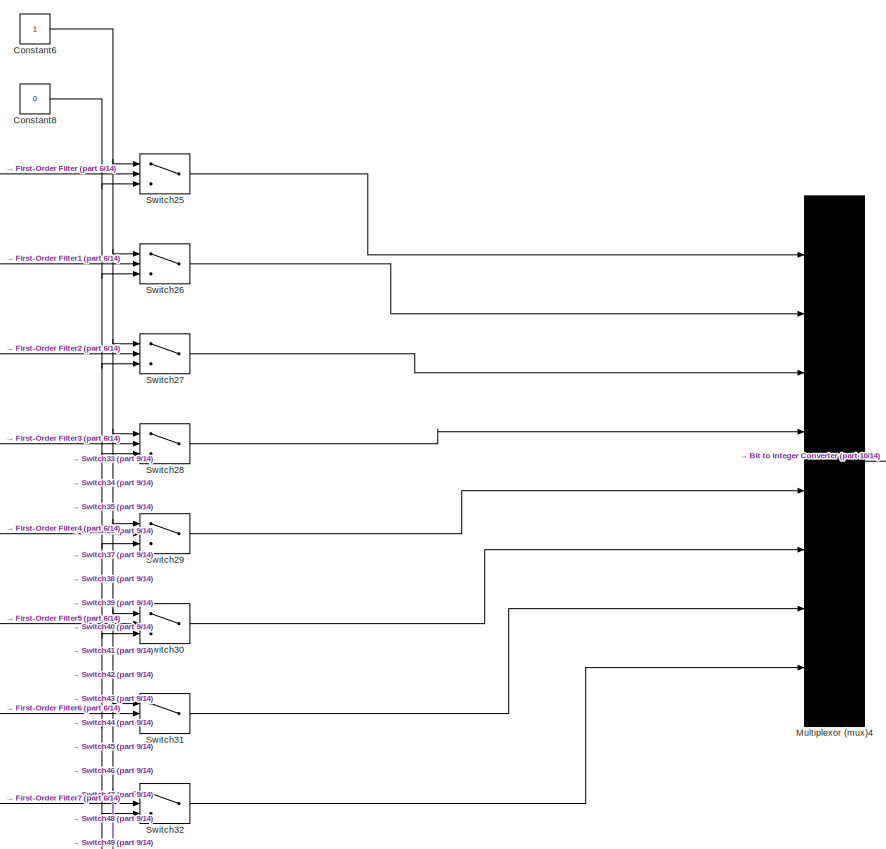
[diagram: root canvas - part 1/14, top right region]
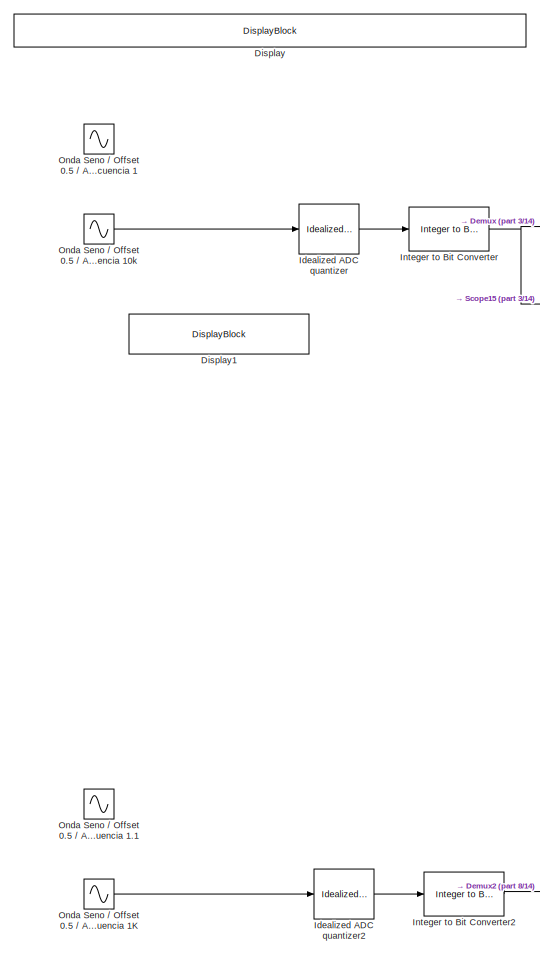
[diagram: root canvas - part 2/14, top left region]
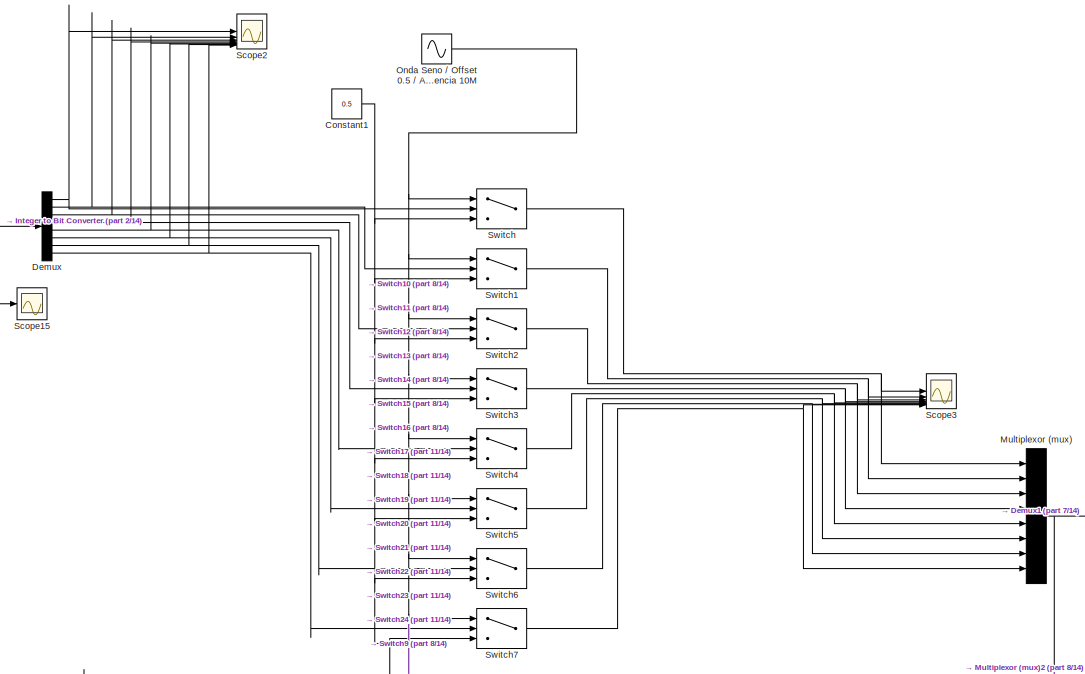
[diagram: root canvas - part 3/14, top left region]
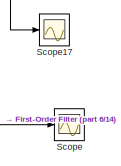
[diagram: root canvas - part 4/14, top center region]
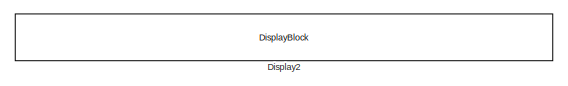
[diagram: root canvas - part 5/14, top right region]
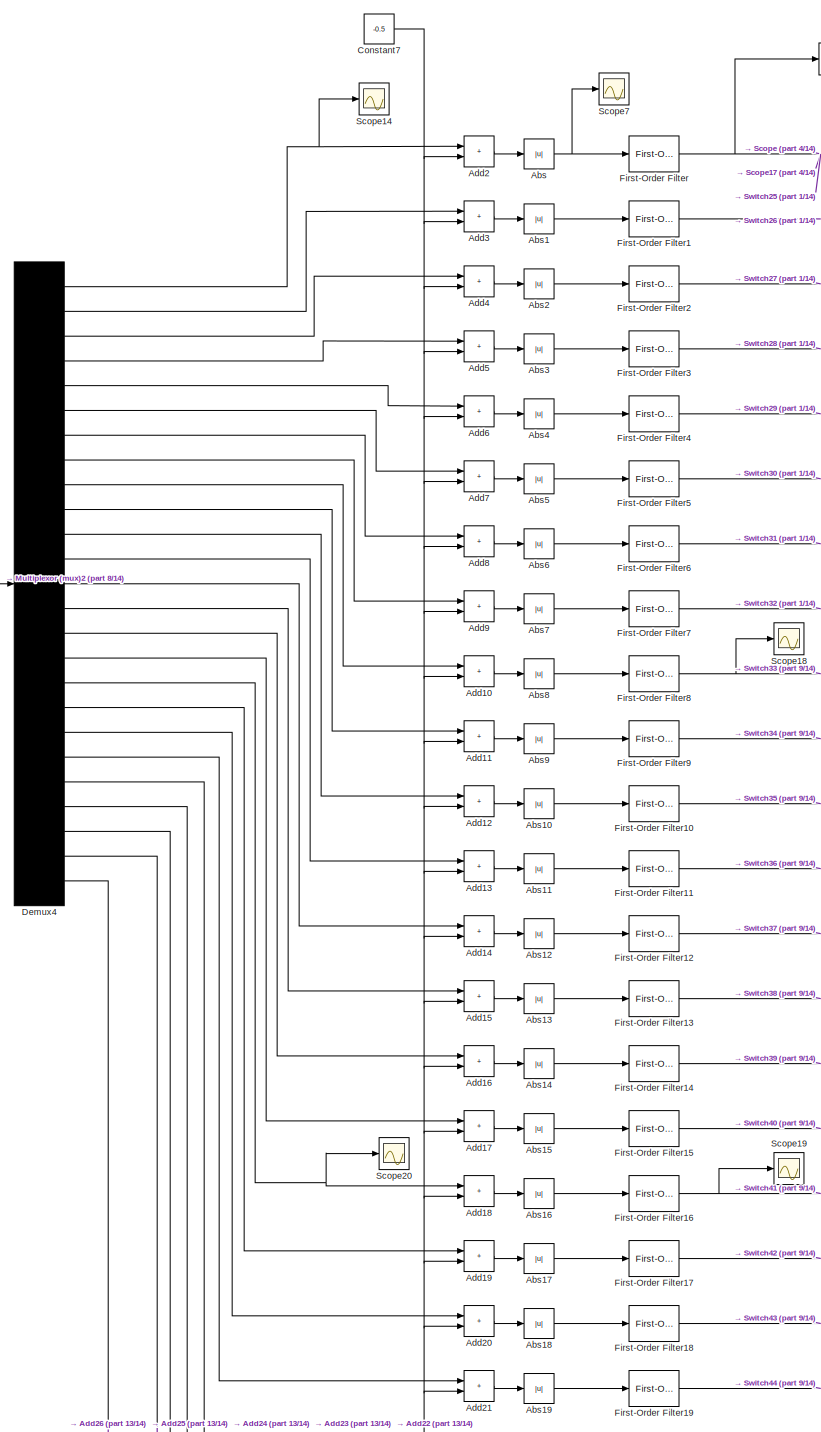
[diagram: root canvas - part 6/14, central region]
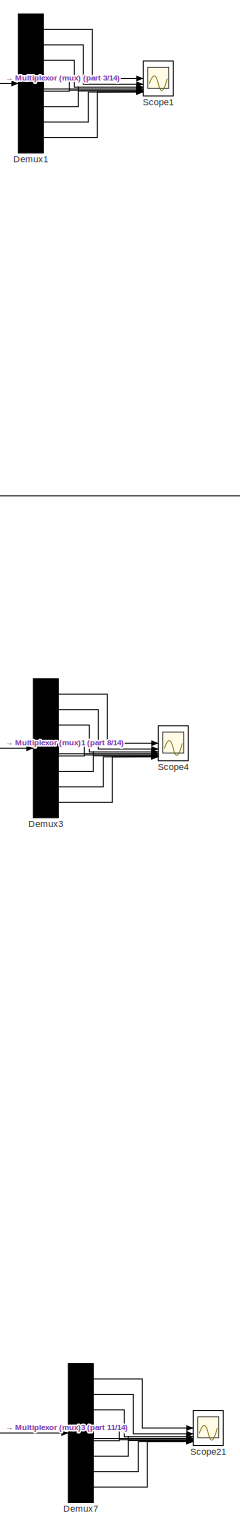
[diagram: root canvas - part 7/14, middle left region]
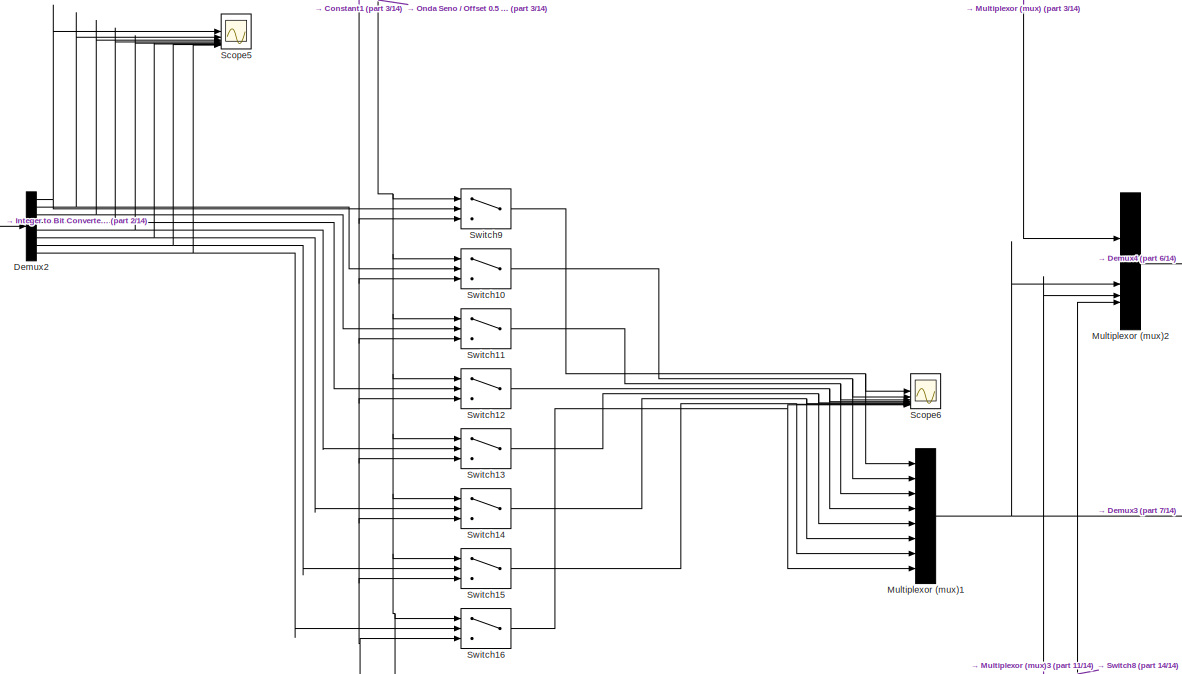
[diagram: root canvas - part 8/14, middle left region]
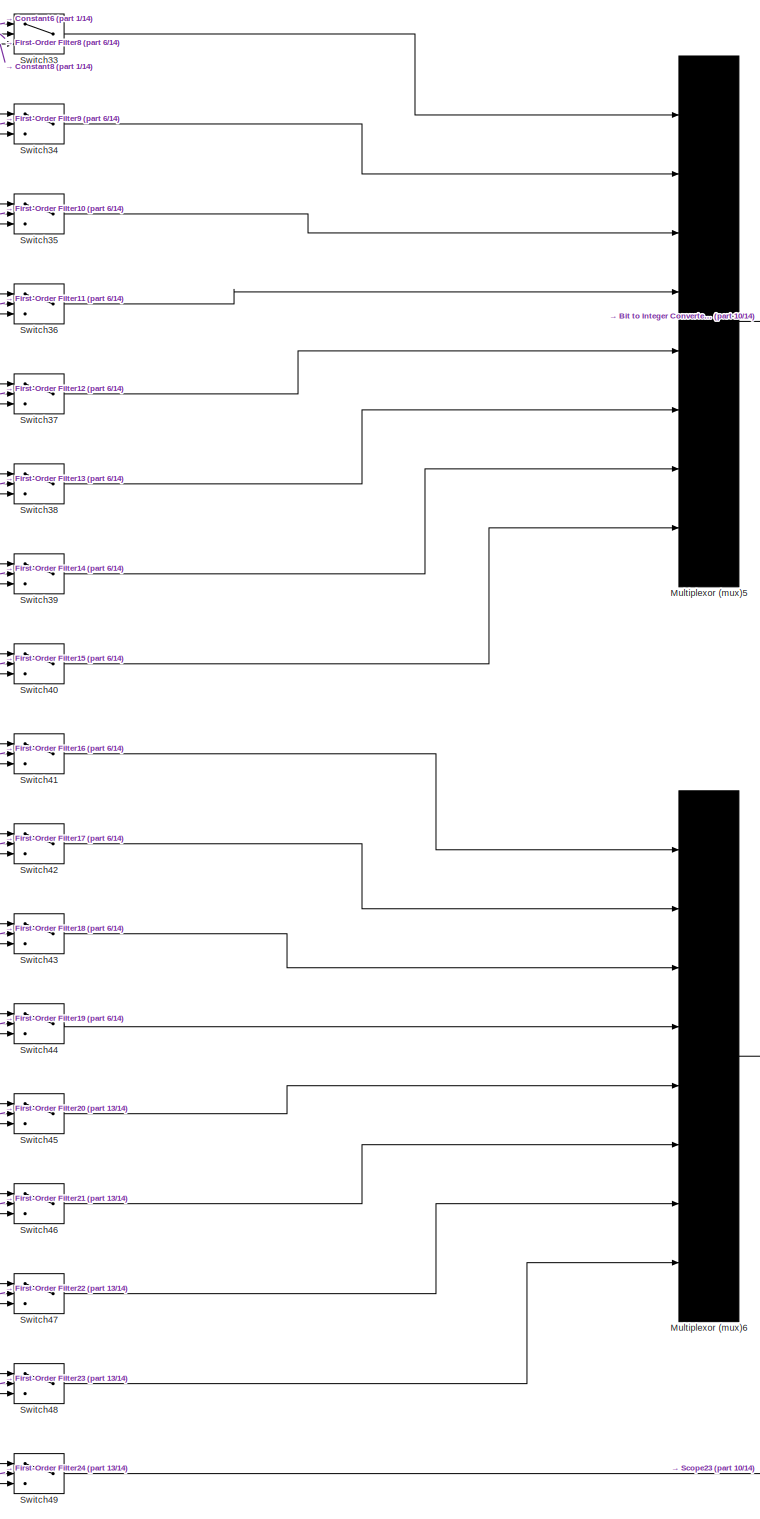
[diagram: root canvas - part 9/14, bottom right region]
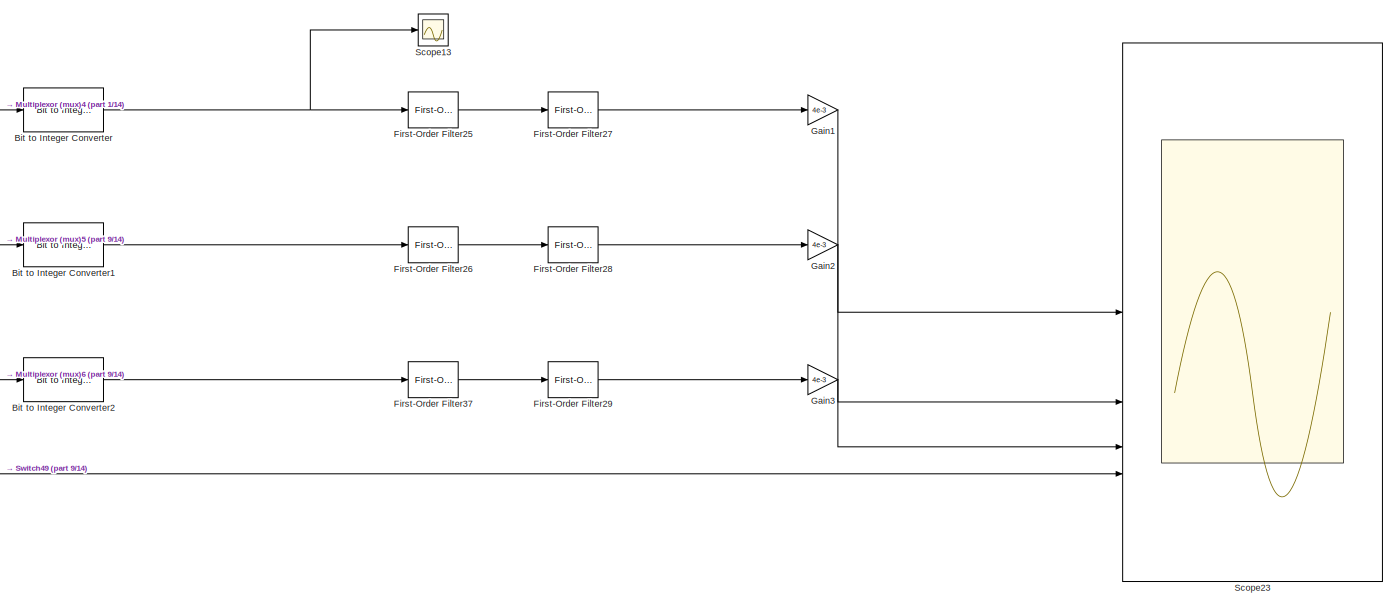
[diagram: root canvas - part 10/14, middle right region]
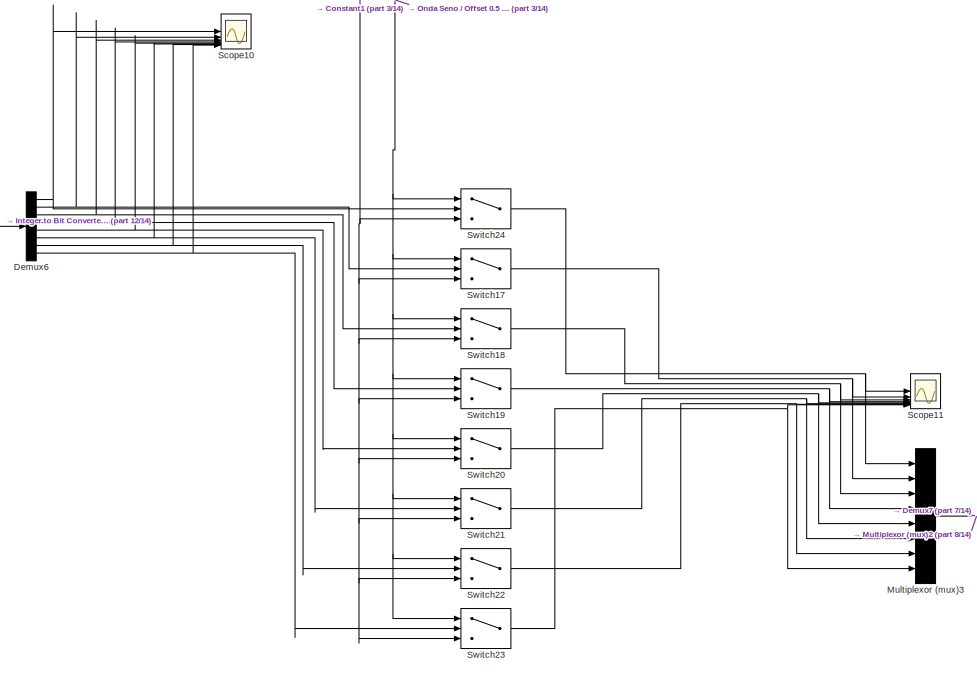
[diagram: root canvas - part 11/14, bottom left region]
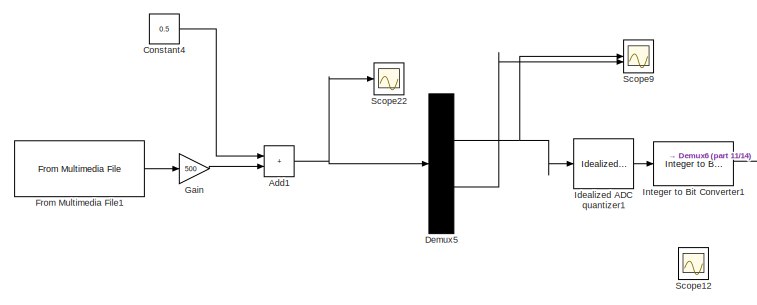
[diagram: root canvas - part 12/14, bottom left region]
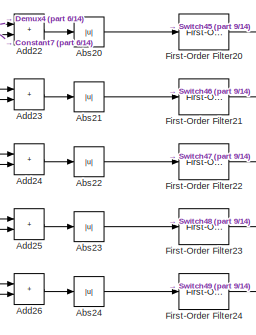
[diagram: root canvas - part 13/14, bottom center region]
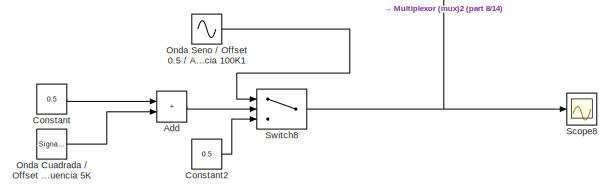
[diagram: root canvas - part 14/14, bottom left region]
MODEL slx_24bc7bae382a
KIND model
CONFIG AbsTol = auto
CONFIG EnableMultiTasking = off
CONFIG FixedStep = auto
CONFIG MaxStep = auto
CONFIG MinStep = auto
CONFIG RelTol = 1e-3
CONFIG SampleTimeConstraint = Unconstrained
CONFIG SolverName = VariableStepAuto
CONFIG StartTime = 0.0
CONFIG StopTime = 0.05
BLOCK [Abs] Abs
  SaturateOnIntegerOverflow = off
BLOCK [Abs] Abs1
  SaturateOnIntegerOverflow = off
BLOCK [Abs] Abs10
  SaturateOnIntegerOverflow = off
BLOCK [Abs] Abs11
  SaturateOnIntegerOverflow = off
BLOCK [Abs] Abs12
  SaturateOnIntegerOverflow = off
BLOCK [Abs] Abs13
  SaturateOnIntegerOverflow = off
BLOCK [Abs] Abs14
  SaturateOnIntegerOverflow = off
BLOCK [Abs] Abs15
  SaturateOnIntegerOverflow = off
BLOCK [Abs] Abs16
  SaturateOnIntegerOverflow = off
BLOCK [Abs] Abs17
  SaturateOnIntegerOverflow = off
BLOCK [Abs] Abs18
  SaturateOnIntegerOverflow = off
BLOCK [Abs] Abs19
  SaturateOnIntegerOverflow = off
BLOCK [Abs] Abs2
  SaturateOnIntegerOverflow = off
BLOCK [Abs] Abs20
  SaturateOnIntegerOverflow = off
BLOCK [Abs] Abs21
  SaturateOnIntegerOverflow = off
BLOCK [Abs] Abs22
  SaturateOnIntegerOverflow = off
BLOCK [Abs] Abs23
  SaturateOnIntegerOverflow = off
BLOCK [Abs] Abs24
  SaturateOnIntegerOverflow = off
BLOCK [Abs] Abs3
  SaturateOnIntegerOverflow = off
BLOCK [Abs] Abs4
  SaturateOnIntegerOverflow = off
BLOCK [Abs] Abs5
  SaturateOnIntegerOverflow = off
BLOCK [Abs] Abs6
  SaturateOnIntegerOverflow = off
BLOCK [Abs] Abs7
  SaturateOnIntegerOverflow = off
BLOCK [Abs] Abs8
  SaturateOnIntegerOverflow = off
BLOCK [Abs] Abs9
  SaturateOnIntegerOverflow = off
BLOCK [Sum] Add
  IconShape = rectangular
BLOCK [Sum] Add1
  IconShape = rectangular
BLOCK [Sum] Add10
  IconShape = rectangular
BLOCK [Sum] Add11
  IconShape = rectangular
BLOCK [Sum] Add12
  IconShape = rectangular
BLOCK [Sum] Add13
  IconShape = rectangular
BLOCK [Sum] Add14
  IconShape = rectangular
BLOCK [Sum] Add15
  IconShape = rectangular
BLOCK [Sum] Add16
  IconShape = rectangular
BLOCK [Sum] Add17
  IconShape = rectangular
BLOCK [Sum] Add18
  IconShape = rectangular
BLOCK [Sum] Add19
  IconShape = rectangular
BLOCK [Sum] Add2
  IconShape = rectangular
BLOCK [Sum] Add20
  IconShape = rectangular
BLOCK [Sum] Add21
  IconShape = rectangular
BLOCK [Sum] Add22
  IconShape = rectangular
BLOCK [Sum] Add23
  IconShape = rectangular
BLOCK [Sum] Add24
  IconShape = rectangular
BLOCK [Sum] Add25
  IconShape = rectangular
BLOCK [Sum] Add26
  IconShape = rectangular
BLOCK [Sum] Add3
  IconShape = rectangular
BLOCK [Sum] Add4
  IconShape = rectangular
BLOCK [Sum] Add5
  IconShape = rectangular
BLOCK [Sum] Add6
  IconShape = rectangular
BLOCK [Sum] Add7
  IconShape = rectangular
BLOCK [Sum] Add8
  IconShape = rectangular
BLOCK [Sum] Add9
  IconShape = rectangular
BLOCK [Reference] Bit to Integer Converter  REF=simulink/Logic and Bit
Operations/Bit to Integer
Converter
  SourceBlock = simulink/Logic and Bit\nOperations/Bit to Integer\nConverter
  SourceType = Bit to Integer Converter
BLOCK [Reference] Bit to Integer Converter1  REF=simulink/Logic and Bit
Operations/Bit to Integer
Converter
  SourceBlock = simulink/Logic and Bit\nOperations/Bit to Integer\nConverter
  SourceType = Bit to Integer Converter
BLOCK [Reference] Bit to Integer Converter2  REF=simulink/Logic and Bit
Operations/Bit to Integer
Converter
  SourceBlock = simulink/Logic and Bit\nOperations/Bit to Integer\nConverter
  SourceType = Bit to Integer Converter
BLOCK [Constant] Constant
  Value = 0.5
BLOCK [Constant] Constant1
  Value = 0.5
BLOCK [Constant] Constant2
  Value = 0.5
BLOCK [Constant] Constant4
  Value = 0.5
BLOCK [Constant] Constant6
BLOCK [Constant] Constant7
  Value = -0.5
BLOCK [Constant] Constant8
  Value = 0
BLOCK [Demux] Demux
  Outputs = 8
BLOCK [Demux] Demux1
  Outputs = 8
BLOCK [Demux] Demux2
  Outputs = 8
BLOCK [Demux] Demux3
  Outputs = 8
BLOCK [Demux] Demux4
  Outputs = 25
BLOCK [Demux] Demux5
  Outputs = 2
BLOCK [Demux] Demux6
  Outputs = 8
BLOCK [Demux] Demux7
  Outputs = 8
BLOCK [DisplayBlock] Display
  LabelPosition = Hide
  Layout = Fill available space
  Transparency = 1
BLOCK [DisplayBlock] Display1
  LabelPosition = Hide
  Transparency = 1
BLOCK [DisplayBlock] Display2
  LabelPosition = Hide
  Transparency = 1
BLOCK [Reference] First-Order Filter  REF=spsFirstOrderFilterLib/First-Order
Filter
  LibrarySourceBlock = sps_lib/Control/Filters/First-Order\nFilter
  SourceBlock = spsFirstOrderFilterLib/First-Order\nFilter
  SourceType = First-Order Filter
BLOCK [Reference] First-Order Filter1  REF=spsFirstOrderFilterLib/First-Order
Filter
  LibrarySourceBlock = sps_lib/Control/Filters/First-Order\nFilter
  SourceBlock = spsFirstOrderFilterLib/First-Order\nFilter
  SourceType = First-Order Filter
BLOCK [Reference] First-Order Filter10  REF=spsFirstOrderFilterLib/First-Order
Filter
  LibrarySourceBlock = sps_lib/Control/Filters/First-Order\nFilter
  SourceBlock = spsFirstOrderFilterLib/First-Order\nFilter
  SourceType = First-Order Filter
BLOCK [Reference] First-Order Filter11  REF=spsFirstOrderFilterLib/First-Order
Filter
  LibrarySourceBlock = sps_lib/Control/Filters/First-Order\nFilter
  SourceBlock = spsFirstOrderFilterLib/First-Order\nFilter
  SourceType = First-Order Filter
BLOCK [Reference] First-Order Filter12  REF=spsFirstOrderFilterLib/First-Order
Filter
  LibrarySourceBlock = sps_lib/Control/Filters/First-Order\nFilter
  SourceBlock = spsFirstOrderFilterLib/First-Order\nFilter
  SourceType = First-Order Filter
BLOCK [Reference] First-Order Filter13  REF=spsFirstOrderFilterLib/First-Order
Filter
  LibrarySourceBlock = sps_lib/Control/Filters/First-Order\nFilter
  SourceBlock = spsFirstOrderFilterLib/First-Order\nFilter
  SourceType = First-Order Filter
BLOCK [Reference] First-Order Filter14  REF=spsFirstOrderFilterLib/First-Order
Filter
  LibrarySourceBlock = sps_lib/Control/Filters/First-Order\nFilter
  SourceBlock = spsFirstOrderFilterLib/First-Order\nFilter
  SourceType = First-Order Filter
BLOCK [Reference] First-Order Filter15  REF=spsFirstOrderFilterLib/First-Order
Filter
  LibrarySourceBlock = sps_lib/Control/Filters/First-Order\nFilter
  SourceBlock = spsFirstOrderFilterLib/First-Order\nFilter
  SourceType = First-Order Filter
BLOCK [Reference] First-Order Filter16  REF=spsFirstOrderFilterLib/First-Order
Filter
  LibrarySourceBlock = sps_lib/Control/Filters/First-Order\nFilter
  SourceBlock = spsFirstOrderFilterLib/First-Order\nFilter
  SourceType = First-Order Filter
BLOCK [Reference] First-Order Filter17  REF=spsFirstOrderFilterLib/First-Order
Filter
  LibrarySourceBlock = sps_lib/Control/Filters/First-Order\nFilter
  SourceBlock = spsFirstOrderFilterLib/First-Order\nFilter
  SourceType = First-Order Filter
BLOCK [Reference] First-Order Filter18  REF=spsFirstOrderFilterLib/First-Order
Filter
  LibrarySourceBlock = sps_lib/Control/Filters/First-Order\nFilter
  SourceBlock = spsFirstOrderFilterLib/First-Order\nFilter
  SourceType = First-Order Filter
BLOCK [Reference] First-Order Filter19  REF=spsFirstOrderFilterLib/First-Order
Filter
  LibrarySourceBlock = sps_lib/Control/Filters/First-Order\nFilter
  SourceBlock = spsFirstOrderFilterLib/First-Order\nFilter
  SourceType = First-Order Filter
BLOCK [Reference] First-Order Filter2  REF=spsFirstOrderFilterLib/First-Order
Filter
  LibrarySourceBlock = sps_lib/Control/Filters/First-Order\nFilter
  SourceBlock = spsFirstOrderFilterLib/First-Order\nFilter
  SourceType = First-Order Filter
BLOCK [Reference] First-Order Filter20  REF=spsFirstOrderFilterLib/First-Order
Filter
  LibrarySourceBlock = sps_lib/Control/Filters/First-Order\nFilter
  SourceBlock = spsFirstOrderFilterLib/First-Order\nFilter
  SourceType = First-Order Filter
BLOCK [Reference] First-Order Filter21  REF=spsFirstOrderFilterLib/First-Order
Filter
  LibrarySourceBlock = sps_lib/Control/Filters/First-Order\nFilter
  SourceBlock = spsFirstOrderFilterLib/First-Order\nFilter
  SourceType = First-Order Filter
BLOCK [Reference] First-Order Filter22  REF=spsFirstOrderFilterLib/First-Order
Filter
  LibrarySourceBlock = sps_lib/Control/Filters/First-Order\nFilter
  SourceBlock = spsFirstOrderFilterLib/First-Order\nFilter
  SourceType = First-Order Filter
BLOCK [Reference] First-Order Filter23  REF=spsFirstOrderFilterLib/First-Order
Filter
  LibrarySourceBlock = sps_lib/Control/Filters/First-Order\nFilter
  SourceBlock = spsFirstOrderFilterLib/First-Order\nFilter
  SourceType = First-Order Filter
BLOCK [Reference] First-Order Filter24  REF=spsFirstOrderFilterLib/First-Order
Filter
  LibrarySourceBlock = sps_lib/Control/Filters/First-Order\nFilter
  SourceBlock = spsFirstOrderFilterLib/First-Order\nFilter
  SourceType = First-Order Filter
BLOCK [Reference] First-Order Filter25  REF=spsFirstOrderFilterLib/First-Order
Filter
  LibrarySourceBlock = sps_lib/Control/Filters/First-Order\nFilter
  SourceBlock = spsFirstOrderFilterLib/First-Order\nFilter
  SourceType = First-Order Filter
BLOCK [Reference] First-Order Filter26  REF=spsFirstOrderFilterLib/First-Order
Filter
  LibrarySourceBlock = sps_lib/Control/Filters/First-Order\nFilter
  SourceBlock = spsFirstOrderFilterLib/First-Order\nFilter
  SourceType = First-Order Filter
BLOCK [Reference] First-Order Filter27  REF=spsFirstOrderFilterLib/First-Order
Filter
  LibrarySourceBlock = sps_lib/Control/Filters/First-Order\nFilter
  SourceBlock = spsFirstOrderFilterLib/First-Order\nFilter
  SourceType = First-Order Filter
BLOCK [Reference] First-Order Filter28  REF=spsFirstOrderFilterLib/First-Order
Filter
  LibrarySourceBlock = sps_lib/Control/Filters/First-Order\nFilter
  SourceBlock = spsFirstOrderFilterLib/First-Order\nFilter
  SourceType = First-Order Filter
BLOCK [Reference] First-Order Filter29  REF=spsFirstOrderFilterLib/First-Order
Filter
  LibrarySourceBlock = sps_lib/Control/Filters/First-Order\nFilter
  SourceBlock = spsFirstOrderFilterLib/First-Order\nFilter
  SourceType = First-Order Filter
BLOCK [Reference] First-Order Filter3  REF=spsFirstOrderFilterLib/First-Order
Filter
  LibrarySourceBlock = sps_lib/Control/Filters/First-Order\nFilter
  SourceBlock = spsFirstOrderFilterLib/First-Order\nFilter
  SourceType = First-Order Filter
BLOCK [Reference] First-Order Filter37  REF=spsFirstOrderFilterLib/First-Order
Filter
  LibrarySourceBlock = sps_lib/Control/Filters/First-Order\nFilter
  SourceBlock = spsFirstOrderFilterLib/First-Order\nFilter
  SourceType = First-Order Filter
BLOCK [Reference] First-Order Filter4  REF=spsFirstOrderFilterLib/First-Order
Filter
  LibrarySourceBlock = sps_lib/Control/Filters/First-Order\nFilter
  SourceBlock = spsFirstOrderFilterLib/First-Order\nFilter
  SourceType = First-Order Filter
BLOCK [Reference] First-Order Filter5  REF=spsFirstOrderFilterLib/First-Order
Filter
  LibrarySourceBlock = sps_lib/Control/Filters/First-Order\nFilter
  SourceBlock = spsFirstOrderFilterLib/First-Order\nFilter
  SourceType = First-Order Filter
BLOCK [Reference] First-Order Filter6  REF=spsFirstOrderFilterLib/First-Order
Filter
  LibrarySourceBlock = sps_lib/Control/Filters/First-Order\nFilter
  SourceBlock = spsFirstOrderFilterLib/First-Order\nFilter
  SourceType = First-Order Filter
BLOCK [Reference] First-Order Filter7  REF=spsFirstOrderFilterLib/First-Order
Filter
  LibrarySourceBlock = sps_lib/Control/Filters/First-Order\nFilter
  SourceBlock = spsFirstOrderFilterLib/First-Order\nFilter
  SourceType = First-Order Filter
BLOCK [Reference] First-Order Filter8  REF=spsFirstOrderFilterLib/First-Order
Filter
  LibrarySourceBlock = sps_lib/Control/Filters/First-Order\nFilter
  SourceBlock = spsFirstOrderFilterLib/First-Order\nFilter
  SourceType = First-Order Filter
BLOCK [Reference] First-Order Filter9  REF=spsFirstOrderFilterLib/First-Order
Filter
  LibrarySourceBlock = sps_lib/Control/Filters/First-Order\nFilter
  SourceBlock = spsFirstOrderFilterLib/First-Order\nFilter
  SourceType = First-Order Filter
BLOCK [Reference] From Multimedia File1  REF=dspvision/From Multimedia File
  LibrarySourceBlock = audiosources/From Multimedia File
  SourceBlock = dspvision/From Multimedia File
  SourceType = From Multimedia File
BLOCK [Gain] Gain
  Gain = 500
BLOCK [Gain] Gain1
  Gain = 4e-3
BLOCK [Gain] Gain2
  Gain = 4e-3
BLOCK [Gain] Gain3
  Gain = 4e-3
BLOCK [Reference] Idealized ADC quantizer  REF=simulink_extras/Additional
Discrete/Idealized ADC quantizer
  AttributesFormatString = (settings: %<NumberOfConverterBits>-bit converter\nVmin: %<Vmin>, Vmax: %<Vmax>)
  SourceBlock = simulink_extras/Additional\nDiscrete/Idealized ADC quantizer
  SourceType = IdealADC
BLOCK [Reference] Idealized ADC quantizer1  REF=simulink_extras/Additional
Discrete/Idealized ADC quantizer
  AttributesFormatString = (settings: %<NumberOfConverterBits>-bit converter\nVmin: %<Vmin>, Vmax: %<Vmax>)
  SourceBlock = simulink_extras/Additional\nDiscrete/Idealized ADC quantizer
  SourceType = IdealADC
BLOCK [Reference] Idealized ADC quantizer2  REF=simulink_extras/Additional
Discrete/Idealized ADC quantizer
  AttributesFormatString = (settings: %<NumberOfConverterBits>-bit converter\nVmin: %<Vmin>, Vmax: %<Vmax>)
  SourceBlock = simulink_extras/Additional\nDiscrete/Idealized ADC quantizer
  SourceType = IdealADC
BLOCK [Reference] Integer to Bit Converter  REF=simulink/Logic and Bit
Operations/Integer to Bit
Converter
  SourceBlock = simulink/Logic and Bit\nOperations/Integer to Bit\nConverter
  SourceType = Integer to Bit Converter
BLOCK [Reference] Integer to Bit Converter1  REF=simulink/Logic and Bit
Operations/Integer to Bit
Converter
  SourceBlock = simulink/Logic and Bit\nOperations/Integer to Bit\nConverter
  SourceType = Integer to Bit Converter
BLOCK [Reference] Integer to Bit Converter2  REF=simulink/Logic and Bit
Operations/Integer to Bit
Converter
  SourceBlock = simulink/Logic and Bit\nOperations/Integer to Bit\nConverter
  SourceType = Integer to Bit Converter
BLOCK [Mux] Multiplexor (mux)
  DisplayOption = bar
  Inputs = 8
BLOCK [Mux] Multiplexor (mux)1
  DisplayOption = bar
  Inputs = 8
BLOCK [Mux] Multiplexor (mux)2
  DisplayOption = bar
BLOCK [Mux] Multiplexor (mux)3
  DisplayOption = bar
  Inputs = 8
BLOCK [Mux] Multiplexor (mux)4
  DisplayOption = bar
  Inputs = 8
BLOCK [Mux] Multiplexor (mux)5
  DisplayOption = bar
  Inputs = 8
BLOCK [Mux] Multiplexor (mux)6
  DisplayOption = bar
  Inputs = 8
BLOCK [SignalGenerator] Onda Cuadrada // Offset 0.5 // Amplitud 0.5 // Frecuencia 5K
  Amplitude = 0.5
  Frequency = 5000
  WaveForm = square
BLOCK [Sin] Onda Seno // Offset 0.5 // Amplitud 0.5 // Frecuencia 1
  Amplitude = 0.5
  Bias = 0.5
  Frequency = 6.28321853071
  SampleTime = 0
BLOCK [Sin] Onda Seno // Offset 0.5 // Amplitud 0.5 // Frecuencia 1.1
  Amplitude = 0.5
  Bias = 0.5
  Frequency = 6.28321853071
  SampleTime = 0
BLOCK [Sin] Onda Seno // Offset 0.5 // Amplitud 0.5 // Frecuencia 100K1
  Amplitude = 0.5
  Bias = 0.5
  Frequency = 628318.5307
  SampleTime = 0
BLOCK [Sin] Onda Seno // Offset 0.5 // Amplitud 0.5 // Frecuencia 10M
  Amplitude = 0.5
  Bias = 0.5
  Frequency = 62831853.07
  SampleTime = 0
BLOCK [Sin] Onda Seno // Offset 0.5 // Amplitud 0.5 // Frecuencia 10k
  Amplitude = 0.5
  Bias = 0.5
  Frequency = 62831.853071
  SampleTime = 0
BLOCK [Sin] Onda Seno // Offset 0.5 // Amplitud 0.5 // Frecuencia 1K
  Amplitude = 0.5
  Bias = 0.5
  Frequency = 6283.185307
  SampleTime = 0
BLOCK [Scope] Scope
  Floating = off
  NumInputPorts = 1
  ScopeSpecificationString = Simulink.scopes.TimeScopeBlockCfg('CurrentConfiguration', extmgr.ConfigurationSet(extmgr.Configuration('Core','General UI',true),extmgr.Configuration('Core','Source UI',true),extmgr.Configuration('Sources','WiredSimulink',true,'DataLoggingVariableName','ScopeData1'),extmgr.Configuration('Visuals','Time Domain',true,'SerializedDisplays',{struct('MinYLimReal','-0.01859','MaxYLimReal','0.34361','YLab...<+1514ch>
BLOCK [Scope] Scope1
  Floating = off
  NumInputPorts = 8
  ScopeSpecificationString = Simulink.scopes.TimeScopeBlockCfg('CurrentConfiguration', extmgr.ConfigurationSet(extmgr.Configuration('Core','General UI',true),extmgr.Configuration('Core','Source UI',true),extmgr.Configuration('Sources','WiredSimulink',true,'DataLoggingVariableName','ScopeData1'),extmgr.Configuration('Visuals','Time Domain',true,'SerializedDisplays',{struct('MinYLimReal','-0.0291','MaxYLimReal','1.00474','YLabe...<+7034ch>
BLOCK [Scope] Scope10
  Floating = off
  NumInputPorts = 8
  ScopeSpecificationString = Simulink.scopes.TimeScopeBlockCfg('CurrentConfiguration', extmgr.ConfigurationSet(extmgr.Configuration('Core','General UI',true),extmgr.Configuration('Core','Source UI',true),extmgr.Configuration('Sources','WiredSimulink',true,'DataLoggingVariableName','ScopeData2'),extmgr.Configuration('Visuals','Time Domain',true,'SerializedDisplays',{struct('MinYLimReal','-0.125','MaxYLimReal','1.02239','YLabel...<+7338ch>
BLOCK [Scope] Scope11
  Floating = off
  NumInputPorts = 8
  ScopeSpecificationString = Simulink.scopes.TimeScopeBlockCfg('CurrentConfiguration', extmgr.ConfigurationSet(extmgr.Configuration('Core','General UI',true),extmgr.Configuration('Core','Source UI',true),extmgr.Configuration('Sources','WiredSimulink',true,'DataLoggingVariableName','ScopeData3'),extmgr.Configuration('Visuals','Time Domain',true,'SerializedDisplays',{struct('MinYLimReal','-0.0291','MaxYLimReal','1.00474','YLabe...<+7035ch>
BLOCK [Scope] Scope12
  Floating = off
  NumInputPorts = 1
  ScopeSpecificationString = Simulink.scopes.TimeScopeBlockCfg('CurrentConfiguration', extmgr.ConfigurationSet(extmgr.Configuration('Core','General UI',true),extmgr.Configuration('Core','Source UI',true),extmgr.Configuration('Sources','WiredSimulink',true,'DataLoggingVariableName','ScopeData4'),extmgr.Configuration('Visuals','Time Domain',true,'SerializedDisplays',{struct('MinYLimReal','155.00000','MaxYLimReal','355.00000','Y...<+1555ch>
BLOCK [Scope] Scope13
  Floating = off
  NumInputPorts = 1
  ScopeSpecificationString = Simulink.scopes.TimeScopeBlockCfg('CurrentConfiguration', extmgr.ConfigurationSet(extmgr.Configuration('Core','General UI',true),extmgr.Configuration('Core','Source UI',true),extmgr.Configuration('Sources','WiredSimulink',true,'DataLoggingVariableName','ScopeData1'),extmgr.Configuration('Visuals','Time Domain',true,'SerializedDisplays',{struct('MinYLimReal','-14.53864','MaxYLimReal','286.45107','Y...<+1501ch>
BLOCK [Scope] Scope14
  Floating = off
  NumInputPorts = 1
  ScopeSpecificationString = Simulink.scopes.TimeScopeBlockCfg('CurrentConfiguration', extmgr.ConfigurationSet(extmgr.Configuration('Core','General UI',true),extmgr.Configuration('Core','Source UI',true),extmgr.Configuration('Sources','WiredSimulink',true,'DataLoggingVariableName','ScopeData3'),extmgr.Configuration('Visuals','Time Domain',true,'SerializedDisplays',{struct('MinYLimReal','-0.125','MaxYLimReal','1.04537','YLabel...<+1500ch>
BLOCK [Scope] Scope15
  Floating = off
  NumInputPorts = 1
  ScopeSpecificationString = Simulink.scopes.TimeScopeBlockCfg('CurrentConfiguration', extmgr.ConfigurationSet(extmgr.Configuration('Core','General UI',true),extmgr.Configuration('Core','Source UI',true),extmgr.Configuration('Sources','WiredSimulink',true,'DataLoggingVariableName','ScopeData1'),extmgr.Configuration('Visuals','Time Domain',true,'SerializedDisplays',{struct('MinYLimReal','-0.08256','MaxYLimReal','1.0463','YLabe...<+1723ch>
BLOCK [Scope] Scope17
  Floating = off
  NumInputPorts = 1
  ScopeSpecificationString = Simulink.scopes.TimeScopeBlockCfg('CurrentConfiguration', extmgr.ConfigurationSet(extmgr.Configuration('Core','General UI',true),extmgr.Configuration('Core','Source UI',true),extmgr.Configuration('Sources','WiredSimulink',true,'DataLoggingVariableName','ScopeData1'),extmgr.Configuration('Visuals','Time Domain',true,'SerializedDisplays',{struct('MinYLimReal','-0.0398','MaxYLimReal','0.33806','YLabe...<+1539ch>
BLOCK [Scope] Scope18
  Floating = off
  NumInputPorts = 1
  ScopeSpecificationString = Simulink.scopes.TimeScopeBlockCfg('CurrentConfiguration', extmgr.ConfigurationSet(extmgr.Configuration('Core','General UI',true),extmgr.Configuration('Core','Source UI',true),extmgr.Configuration('Sources','WiredSimulink',true,'DataLoggingVariableName','ScopeData2'),extmgr.Configuration('Visuals','Time Domain',true,'SerializedDisplays',{struct('MinYLimReal','-0.03857','MaxYLimReal','0.33517','YLab...<+1516ch>
BLOCK [Scope] Scope19
  Floating = off
  NumInputPorts = 1
  ScopeSpecificationString = Simulink.scopes.TimeScopeBlockCfg('CurrentConfiguration', extmgr.ConfigurationSet(extmgr.Configuration('Core','General UI',true),extmgr.Configuration('Core','Source UI',true),extmgr.Configuration('Sources','WiredSimulink',true,'DataLoggingVariableName','ScopeData3'),extmgr.Configuration('Visuals','Time Domain',true,'SerializedDisplays',{struct('MinYLimReal','-0.06212','MaxYLimReal','0.33676','YLab...<+1516ch>
BLOCK [Scope] Scope2
  Floating = off
  NumInputPorts = 8
  ScopeSpecificationString = Simulink.scopes.TimeScopeBlockCfg('CurrentConfiguration', extmgr.ConfigurationSet(extmgr.Configuration('Core','General UI',true),extmgr.Configuration('Core','Source UI',true),extmgr.Configuration('Sources','WiredSimulink',true,'DataLoggingVariableName','ScopeData1'),extmgr.Configuration('Visuals','Time Domain',true,'SerializedDisplays',{struct('MinYLimReal','0.06897','MaxYLimReal','1.125','YLabelR...<+7047ch>
BLOCK [Scope] Scope20
  Floating = off
  NumInputPorts = 1
  ScopeSpecificationString = Simulink.scopes.TimeScopeBlockCfg('CurrentConfiguration', extmgr.ConfigurationSet(extmgr.Configuration('Core','General UI',true),extmgr.Configuration('Core','Source UI',true),extmgr.Configuration('Sources','WiredSimulink',true,'DataLoggingVariableName','ScopeData4'),extmgr.Configuration('Visuals','Time Domain',true,'SerializedDisplays',{struct('MinYLimReal','0.06291','MaxYLimReal','0.95958','YLabe...<+1504ch>
BLOCK [Scope] Scope21
  Floating = off
  NumInputPorts = 8
  ScopeSpecificationString = Simulink.scopes.TimeScopeBlockCfg('CurrentConfiguration', extmgr.ConfigurationSet(extmgr.Configuration('Core','General UI',true),extmgr.Configuration('Core','Source UI',true),extmgr.Configuration('Sources','WiredSimulink',true,'DataLoggingVariableName','ScopeData5'),extmgr.Configuration('Visuals','Time Domain',true,'SerializedDisplays',{struct('MinYLimReal','-0.0291','MaxYLimReal','1.00474','YLabe...<+7035ch>
BLOCK [Scope] Scope22
  Floating = off
  NumInputPorts = 1
  ScopeSpecificationString = Simulink.scopes.TimeScopeBlockCfg('CurrentConfiguration', extmgr.ConfigurationSet(extmgr.Configuration('Core','General UI',true),extmgr.Configuration('Core','Source UI',true),extmgr.Configuration('Sources','WiredSimulink',true,'DataLoggingVariableName','ScopeData6'),extmgr.Configuration('Visuals','Time Domain',true,'SerializedDisplays',{struct('MinYLimReal','-0.14526','MaxYLimReal','0.85992','YLab...<+1512ch>
BLOCK [Scope] Scope23
  Floating = off
  NumInputPorts = 4
  ScopeSpecificationString = Simulink.scopes.TimeScopeBlockCfg('CurrentConfiguration', extmgr.ConfigurationSet(extmgr.Configuration('Core','General UI',true),extmgr.Configuration('Core','Source UI',true),extmgr.Configuration('Sources','WiredSimulink',true,'DataLoggingVariableName','ScopeData1'),extmgr.Configuration('Visuals','Time Domain',true,'SerializedDisplays',{struct('MinYLimReal','-0.05514','MaxYLimReal','1.1475','YLabe...<+3745ch>
BLOCK [Scope] Scope3
  Floating = off
  NumInputPorts = 8
  ScopeSpecificationString = Simulink.scopes.TimeScopeBlockCfg('CurrentConfiguration', extmgr.ConfigurationSet(extmgr.Configuration('Core','General UI',true),extmgr.Configuration('Core','Source UI',true),extmgr.Configuration('Sources','WiredSimulink',true,'DataLoggingVariableName','ScopeData2'),extmgr.Configuration('Visuals','Time Domain',true,'SerializedDisplays',{struct('MinYLimReal','0.08365','MaxYLimReal','1.125','YLabelR...<+6909ch>
BLOCK [Scope] Scope4
  Floating = off
  NumInputPorts = 8
  ScopeSpecificationString = Simulink.scopes.TimeScopeBlockCfg('CurrentConfiguration', extmgr.ConfigurationSet(extmgr.Configuration('Core','General UI',true),extmgr.Configuration('Core','Source UI',true),extmgr.Configuration('Sources','WiredSimulink',true,'DataLoggingVariableName','ScopeData2'),extmgr.Configuration('Visuals','Time Domain',true,'SerializedDisplays',{struct('MinYLimReal','-0.0291','MaxYLimReal','1.00474','YLabe...<+7035ch>
BLOCK [Scope] Scope5
  Floating = off
  NumInputPorts = 8
  ScopeSpecificationString = Simulink.scopes.TimeScopeBlockCfg('CurrentConfiguration', extmgr.ConfigurationSet(extmgr.Configuration('Core','General UI',true),extmgr.Configuration('Core','Source UI',true),extmgr.Configuration('Sources','WiredSimulink',true,'DataLoggingVariableName','ScopeData3'),extmgr.Configuration('Visuals','Time Domain',true,'SerializedDisplays',{struct('MinYLimReal','0.00000','MaxYLimReal','1.10121','YLabe...<+7166ch>
BLOCK [Scope] Scope6
  Floating = off
  NumInputPorts = 8
  ScopeSpecificationString = Simulink.scopes.TimeScopeBlockCfg('CurrentConfiguration', extmgr.ConfigurationSet(extmgr.Configuration('Core','General UI',true),extmgr.Configuration('Core','Source UI',true),extmgr.Configuration('Sources','WiredSimulink',true,'DataLoggingVariableName','ScopeData4'),extmgr.Configuration('Visuals','Time Domain',true,'SerializedDisplays',{struct('MinYLimReal','-0.0291','MaxYLimReal','1.00474','YLabe...<+7034ch>
BLOCK [Scope] Scope7
  Floating = off
  NumInputPorts = 1
  ScopeSpecificationString = Simulink.scopes.TimeScopeBlockCfg('CurrentConfiguration', extmgr.ConfigurationSet(extmgr.Configuration('Core','General UI',true),extmgr.Configuration('Core','Source UI',true),extmgr.Configuration('Sources','WiredSimulink',true,'DataLoggingVariableName','ScopeData2'),extmgr.Configuration('Visuals','Time Domain',true,'SerializedDisplays',{struct('MinYLimReal','-0.01578','MaxYLimReal','0.52381','YLab...<+1500ch>
BLOCK [Scope] Scope8
  Floating = off
  NumInputPorts = 1
  ScopeSpecificationString = Simulink.scopes.TimeScopeBlockCfg('CurrentConfiguration', extmgr.ConfigurationSet(extmgr.Configuration('Core','General UI',true),extmgr.Configuration('Core','Source UI',true),extmgr.Configuration('Sources','WiredSimulink',true,'DataLoggingVariableName','ScopeData7'),extmgr.Configuration('Visuals','Time Domain',true,'SerializedDisplays',{struct('MinYLimReal','-0.04216','MaxYLimReal','0.9651','YLabe...<+1500ch>
BLOCK [Scope] Scope9
  Floating = off
  NumInputPorts = 2
  ScopeSpecificationString = Simulink.scopes.TimeScopeBlockCfg('CurrentConfiguration', extmgr.ConfigurationSet(extmgr.Configuration('Core','General UI',true),extmgr.Configuration('Core','Source UI',true),extmgr.Configuration('Sources','WiredSimulink',true,'DataLoggingVariableName','ScopeData1'),extmgr.Configuration('Visuals','Time Domain',true,'SerializedDisplays',{struct('MinYLimReal','0.07466','MaxYLimReal','0.97112','YLabe...<+2307ch>
BLOCK [Switch] Switch
  Criteria = u2 > Threshold
  InputSameDT = off
  SaturateOnIntegerOverflow = off
  Threshold = 0.5
BLOCK [Switch] Switch1
  Criteria = u2 > Threshold
  InputSameDT = off
  SaturateOnIntegerOverflow = off
  Threshold = 0.5
BLOCK [Switch] Switch10
  Criteria = u2 > Threshold
  InputSameDT = off
  SaturateOnIntegerOverflow = off
  Threshold = 0.5
BLOCK [Switch] Switch11
  Criteria = u2 > Threshold
  InputSameDT = off
  SaturateOnIntegerOverflow = off
  Threshold = 0.5
BLOCK [Switch] Switch12
  Criteria = u2 > Threshold
  InputSameDT = off
  SaturateOnIntegerOverflow = off
  Threshold = 0.5
BLOCK [Switch] Switch13
  Criteria = u2 > Threshold
  InputSameDT = off
  SaturateOnIntegerOverflow = off
  Threshold = 0.5
BLOCK [Switch] Switch14
  Criteria = u2 > Threshold
  InputSameDT = off
  SaturateOnIntegerOverflow = off
  Threshold = 0.5
BLOCK [Switch] Switch15
  Criteria = u2 > Threshold
  InputSameDT = off
  SaturateOnIntegerOverflow = off
  Threshold = 0.5
BLOCK [Switch] Switch16
  Criteria = u2 > Threshold
  InputSameDT = off
  SaturateOnIntegerOverflow = off
  Threshold = 0.5
BLOCK [Switch] Switch17
  Criteria = u2 > Threshold
  InputSameDT = off
  SaturateOnIntegerOverflow = off
  Threshold = 0.5
BLOCK [Switch] Switch18
  Criteria = u2 > Threshold
  InputSameDT = off
  SaturateOnIntegerOverflow = off
  Threshold = 0.5
BLOCK [Switch] Switch19
  Criteria = u2 > Threshold
  InputSameDT = off
  SaturateOnIntegerOverflow = off
  Threshold = 0.5
BLOCK [Switch] Switch2
  Criteria = u2 > Threshold
  InputSameDT = off
  SaturateOnIntegerOverflow = off
  Threshold = 0.5
BLOCK [Switch] Switch20
  Criteria = u2 > Threshold
  InputSameDT = off
  SaturateOnIntegerOverflow = off
  Threshold = 0.5
BLOCK [Switch] Switch21
  Criteria = u2 > Threshold
  InputSameDT = off
  SaturateOnIntegerOverflow = off
  Threshold = 0.5
BLOCK [Switch] Switch22
  Criteria = u2 > Threshold
  InputSameDT = off
  SaturateOnIntegerOverflow = off
  Threshold = 0.5
BLOCK [Switch] Switch23
  Criteria = u2 > Threshold
  InputSameDT = off
  SaturateOnIntegerOverflow = off
  Threshold = 0.5
BLOCK [Switch] Switch24
  Criteria = u2 > Threshold
  InputSameDT = off
  SaturateOnIntegerOverflow = off
  Threshold = 0.5
BLOCK [Switch] Switch25
  Criteria = u2 > Threshold
  InputSameDT = off
  SaturateOnIntegerOverflow = off
  Threshold = .15
BLOCK [Switch] Switch26
  Criteria = u2 > Threshold
  InputSameDT = off
  SaturateOnIntegerOverflow = off
  Threshold = .15
BLOCK [Switch] Switch27
  Criteria = u2 > Threshold
  InputSameDT = off
  SaturateOnIntegerOverflow = off
  Threshold = .15
BLOCK [Switch] Switch28
  Criteria = u2 > Threshold
  InputSameDT = off
  SaturateOnIntegerOverflow = off
  Threshold = .15
BLOCK [Switch] Switch29
  Criteria = u2 > Threshold
  InputSameDT = off
  SaturateOnIntegerOverflow = off
  Threshold = .15
BLOCK [Switch] Switch3
  Criteria = u2 > Threshold
  InputSameDT = off
  SaturateOnIntegerOverflow = off
  Threshold = 0.5
BLOCK [Switch] Switch30
  Criteria = u2 > Threshold
  InputSameDT = off
  SaturateOnIntegerOverflow = off
  Threshold = .15
BLOCK [Switch] Switch31
  Criteria = u2 > Threshold
  InputSameDT = off
  SaturateOnIntegerOverflow = off
  Threshold = .15
BLOCK [Switch] Switch32
  Criteria = u2 > Threshold
  InputSameDT = off
  SaturateOnIntegerOverflow = off
  Threshold = .15
BLOCK [Switch] Switch33
  Criteria = u2 > Threshold
  InputSameDT = off
  SaturateOnIntegerOverflow = off
  Threshold = 0.3
BLOCK [Switch] Switch34
  Criteria = u2 > Threshold
  InputSameDT = off
  SaturateOnIntegerOverflow = off
  Threshold = 0.3
BLOCK [Switch] Switch35
  Criteria = u2 > Threshold
  InputSameDT = off
  SaturateOnIntegerOverflow = off
  Threshold = 0.3
BLOCK [Switch] Switch36
  Criteria = u2 > Threshold
  InputSameDT = off
  SaturateOnIntegerOverflow = off
  Threshold = 0.3
BLOCK [Switch] Switch37
  Criteria = u2 > Threshold
  InputSameDT = off
  SaturateOnIntegerOverflow = off
  Threshold = 0.3
BLOCK [Switch] Switch38
  Criteria = u2 > Threshold
  InputSameDT = off
  SaturateOnIntegerOverflow = off
  Threshold = 0.3
BLOCK [Switch] Switch39
  Criteria = u2 > Threshold
  InputSameDT = off
  SaturateOnIntegerOverflow = off
  Threshold = 0.3
BLOCK [Switch] Switch4
  Criteria = u2 > Threshold
  InputSameDT = off
  SaturateOnIntegerOverflow = off
  Threshold = 0.5
BLOCK [Switch] Switch40
  Criteria = u2 > Threshold
  InputSameDT = off
  SaturateOnIntegerOverflow = off
  Threshold = 0.3
BLOCK [Switch] Switch41
  Criteria = u2 > Threshold
  InputSameDT = off
  SaturateOnIntegerOverflow = off
  Threshold = 0.3
BLOCK [Switch] Switch42
  Criteria = u2 > Threshold
  InputSameDT = off
  SaturateOnIntegerOverflow = off
  Threshold = 0.3
BLOCK [Switch] Switch43
  Criteria = u2 > Threshold
  InputSameDT = off
  SaturateOnIntegerOverflow = off
  Threshold = 0.3
BLOCK [Switch] Switch44
  Criteria = u2 > Threshold
  InputSameDT = off
  SaturateOnIntegerOverflow = off
  Threshold = 0.3
BLOCK [Switch] Switch45
  Criteria = u2 > Threshold
  InputSameDT = off
  SaturateOnIntegerOverflow = off
  Threshold = 0.3
BLOCK [Switch] Switch46
  Criteria = u2 > Threshold
  InputSameDT = off
  SaturateOnIntegerOverflow = off
  Threshold = 0.3
BLOCK [Switch] Switch47
  Criteria = u2 > Threshold
  InputSameDT = off
  SaturateOnIntegerOverflow = off
  Threshold = 0.3
BLOCK [Switch] Switch48
  Criteria = u2 > Threshold
  InputSameDT = off
  SaturateOnIntegerOverflow = off
  Threshold = 0.3
BLOCK [Switch] Switch49
  Criteria = u2 > Threshold
  InputSameDT = off
  SaturateOnIntegerOverflow = off
  Threshold = 0.165
BLOCK [Switch] Switch5
  Criteria = u2 > Threshold
  InputSameDT = off
  SaturateOnIntegerOverflow = off
  Threshold = 0.5
BLOCK [Switch] Switch6
  Criteria = u2 > Threshold
  InputSameDT = off
  SaturateOnIntegerOverflow = off
  Threshold = 0.5
BLOCK [Switch] Switch7
  Criteria = u2 > Threshold
  InputSameDT = off
  SaturateOnIntegerOverflow = off
  Threshold = 0.5
BLOCK [Switch] Switch8
  Criteria = u2 > Threshold
  InputSameDT = off
  SaturateOnIntegerOverflow = off
  Threshold = 0.5
BLOCK [Switch] Switch9
  Criteria = u2 > Threshold
  InputSameDT = off
  SaturateOnIntegerOverflow = off
  Threshold = 0.5
LINE Abs10:1 -> First-Order Filter10:1
LINE Abs11:1 -> First-Order Filter11:1
LINE Abs12:1 -> First-Order Filter12:1
LINE Abs13:1 -> First-Order Filter13:1
LINE Abs14:1 -> First-Order Filter14:1
LINE Abs15:1 -> First-Order Filter15:1
LINE Abs16:1 -> First-Order Filter16:1
LINE Abs17:1 -> First-Order Filter17:1
LINE Abs18:1 -> First-Order Filter18:1
LINE Abs19:1 -> First-Order Filter19:1
LINE Abs1:1 -> First-Order Filter1:1
LINE Abs20:1 -> First-Order Filter20:1
LINE Abs21:1 -> First-Order Filter21:1
LINE Abs22:1 -> First-Order Filter22:1
LINE Abs23:1 -> First-Order Filter23:1
LINE Abs24:1 -> First-Order Filter24:1
LINE Abs2:1 -> First-Order Filter2:1
LINE Abs3:1 -> First-Order Filter3:1
LINE Abs4:1 -> First-Order Filter4:1
LINE Abs5:1 -> First-Order Filter5:1
LINE Abs6:1 -> First-Order Filter6:1
LINE Abs7:1 -> First-Order Filter7:1
LINE Abs8:1 -> First-Order Filter8:1
LINE Abs9:1 -> First-Order Filter9:1
NET Abs:1 -> First-Order Filter:1, Scope7:1
LINE Add10:1 -> Abs8:1
LINE Add11:1 -> Abs9:1
LINE Add12:1 -> Abs10:1
LINE Add13:1 -> Abs11:1
LINE Add14:1 -> Abs12:1
LINE Add15:1 -> Abs13:1
LINE Add16:1 -> Abs14:1
LINE Add17:1 -> Abs15:1
LINE Add18:1 -> Abs16:1
LINE Add19:1 -> Abs17:1
NET Add1:1 -> Demux5:1, Scope22:1
LINE Add20:1 -> Abs18:1
LINE Add21:1 -> Abs19:1
LINE Add22:1 -> Abs20:1
LINE Add23:1 -> Abs21:1
LINE Add24:1 -> Abs22:1
LINE Add25:1 -> Abs23:1
LINE Add26:1 -> Abs24:1
LINE Add2:1 -> Abs:1
LINE Add3:1 -> Abs1:1
LINE Add4:1 -> Abs2:1
LINE Add5:1 -> Abs3:1
LINE Add6:1 -> Abs4:1
LINE Add7:1 -> Abs5:1
LINE Add8:1 -> Abs6:1
LINE Add9:1 -> Abs7:1
LINE Add:1 -> Switch8:2
LINE Bit to Integer Converter1:1 -> First-Order Filter26:1
LINE Bit to Integer Converter2:1 -> First-Order Filter37:1
NET Bit to Integer Converter:1 -> First-Order Filter25:1, Scope13:1
NET Constant1:1 -> Switch10:3, Switch11:3, Switch12:3, Switch13:3, Switch14:3, Switch15:3, Switch16:3, Switch17:3, Switch18:3, Switch19:3, Switch1:3, Switch20:3, Switch21:3, Switch22:3, Switch23:3, Switch24:3, Switch2:3, Switch3:3, Switch4:3, Switch5:3, Switch6:3, Switch7:3, Switch9:3, Switch:3
LINE Constant2:1 -> Switch8:3
LINE Constant4:1 -> Add1:1
NET Constant6:1 -> Switch25:1, Switch26:1, Switch27:1, Switch28:1, Switch29:1, Switch30:1, Switch31:1, Switch32:1, Switch33:1, Switch34:1, Switch35:1, Switch36:1, Switch37:1, Switch38:1, Switch39:1, Switch40:1, Switch41:1, Switch42:1, Switch43:1, Switch44:1, Switch45:1, Switch46:1, Switch47:1, Switch48:1, Switch49:1
NET Constant7:1 -> Add10:2, Add11:2, Add12:2, Add13:2, Add14:2, Add15:2, Add16:2, Add17:2, Add18:2, Add19:2, Add20:2, Add21:2, Add22:2, Add23:2, Add24:2, Add25:2, Add26:2, Add2:2, Add3:2, Add4:2, Add5:2, Add6:2, Add7:2, Add8:2, Add9:2
NET Constant8:1 -> Switch25:3, Switch26:3, Switch27:3, Switch28:3, Switch29:3, Switch30:3, Switch31:3, Switch32:3, Switch33:3, Switch34:3, Switch35:3, Switch36:3, Switch37:3, Switch38:3, Switch39:3, Switch40:3, Switch41:3, Switch42:3, Switch43:3, Switch44:3, Switch45:3, Switch46:3, Switch47:3, Switch48:3, Switch49:3
LINE Constant:1 -> Add:1
LINE Demux1:1 -> Scope1:1
LINE Demux1:2 -> Scope1:2
LINE Demux1:3 -> Scope1:3
LINE Demux1:4 -> Scope1:4
LINE Demux1:5 -> Scope1:5
LINE Demux1:6 -> Scope1:6
LINE Demux1:7 -> Scope1:7
LINE Demux1:8 -> Scope1:8
NET Demux2:1 -> Scope5:1, Switch9:2
NET Demux2:2 -> Scope5:2, Switch10:2
NET Demux2:3 -> Scope5:3, Switch11:2
NET Demux2:4 -> Scope5:4, Switch12:2
NET Demux2:5 -> Scope5:5, Switch13:2
NET Demux2:6 -> Scope5:6, Switch14:2
NET Demux2:7 -> Scope5:7, Switch15:2
NET Demux2:8 -> Scope5:8, Switch16:2
LINE Demux3:1 -> Scope4:1
LINE Demux3:2 -> Scope4:2
LINE Demux3:3 -> Scope4:3
LINE Demux3:4 -> Scope4:4
LINE Demux3:5 -> Scope4:5
LINE Demux3:6 -> Scope4:6
LINE Demux3:7 -> Scope4:7
LINE Demux3:8 -> Scope4:8
NET Demux4:1 -> Add2:1, Scope14:1
LINE Demux4:10 -> Add11:1
LINE Demux4:11 -> Add12:1
LINE Demux4:12 -> Add13:1
LINE Demux4:13 -> Add14:1
LINE Demux4:14 -> Add15:1
LINE Demux4:15 -> Add16:1
LINE Demux4:16 -> Add17:1
NET Demux4:17 -> Add18:1, Scope20:1
LINE Demux4:18 -> Add19:1
LINE Demux4:19 -> Add20:1
LINE Demux4:2 -> Add3:1
LINE Demux4:20 -> Add21:1
LINE Demux4:21 -> Add22:1
LINE Demux4:22 -> Add23:1
LINE Demux4:23 -> Add24:1
LINE Demux4:24 -> Add25:1
LINE Demux4:25 -> Add26:1
LINE Demux4:3 -> Add4:1
LINE Demux4:4 -> Add5:1
LINE Demux4:5 -> Add6:1
LINE Demux4:6 -> Add7:1
LINE Demux4:7 -> Add8:1
LINE Demux4:8 -> Add9:1
LINE Demux4:9 -> Add10:1
NET Demux5:1 -> Idealized ADC quantizer1:1, Scope9:1
LINE Demux5:2 -> Scope9:2
NET Demux6:1 -> Scope10:1, Switch24:2
NET Demux6:2 -> Scope10:2, Switch17:2
NET Demux6:3 -> Scope10:3, Switch18:2
NET Demux6:4 -> Scope10:4, Switch19:2
NET Demux6:5 -> Scope10:5, Switch20:2
NET Demux6:6 -> Scope10:6, Switch21:2
NET Demux6:7 -> Scope10:7, Switch22:2
NET Demux6:8 -> Scope10:8, Switch23:2
LINE Demux7:1 -> Scope21:1
LINE Demux7:2 -> Scope21:2
LINE Demux7:3 -> Scope21:3
LINE Demux7:4 -> Scope21:4
LINE Demux7:5 -> Scope21:5
LINE Demux7:6 -> Scope21:6
LINE Demux7:7 -> Scope21:7
LINE Demux7:8 -> Scope21:8
NET Demux:1 -> Scope2:1, Switch:2
NET Demux:2 -> Scope2:2, Switch1:2
NET Demux:3 -> Scope2:3, Switch2:2
NET Demux:4 -> Scope2:4, Switch3:2
NET Demux:5 -> Scope2:5, Switch4:2
NET Demux:6 -> Scope2:6, Switch5:2
NET Demux:7 -> Scope2:7, Switch6:2
NET Demux:8 -> Scope2:8, Switch7:2
LINE First-Order Filter10:1 -> Switch35:2
LINE First-Order Filter11:1 -> Switch36:2
LINE First-Order Filter12:1 -> Switch37:2
LINE First-Order Filter13:1 -> Switch38:2
LINE First-Order Filter14:1 -> Switch39:2
LINE First-Order Filter15:1 -> Switch40:2
NET First-Order Filter16:1 -> Scope19:1, Switch41:2
LINE First-Order Filter17:1 -> Switch42:2
LINE First-Order Filter18:1 -> Switch43:2
LINE First-Order Filter19:1 -> Switch44:2
LINE First-Order Filter1:1 -> Switch26:2
LINE First-Order Filter20:1 -> Switch45:2
LINE First-Order Filter21:1 -> Switch46:2
LINE First-Order Filter22:1 -> Switch47:2
LINE First-Order Filter23:1 -> Switch48:2
LINE First-Order Filter24:1 -> Switch49:2
LINE First-Order Filter25:1 -> First-Order Filter27:1
LINE First-Order Filter26:1 -> First-Order Filter28:1
LINE First-Order Filter27:1 -> Gain1:1
LINE First-Order Filter28:1 -> Gain2:1
LINE First-Order Filter29:1 -> Gain3:1
LINE First-Order Filter2:1 -> Switch27:2
LINE First-Order Filter37:1 -> First-Order Filter29:1
LINE First-Order Filter3:1 -> Switch28:2
LINE First-Order Filter4:1 -> Switch29:2
LINE First-Order Filter5:1 -> Switch30:2
LINE First-Order Filter6:1 -> Switch31:2
LINE First-Order Filter7:1 -> Switch32:2
NET First-Order Filter8:1 -> Scope18:1, Switch33:2
LINE First-Order Filter9:1 -> Switch34:2
NET First-Order Filter:1 -> Scope17:1, Scope:1, Switch25:2
LINE From Multimedia File1:1 -> Gain:1
LINE Gain1:1 -> Scope23:1
LINE Gain2:1 -> Scope23:2
LINE Gain3:1 -> Scope23:3
LINE Gain:1 -> Add1:2
LINE Idealized ADC quantizer1:1 -> Integer to Bit Converter1:1
LINE Idealized ADC quantizer2:1 -> Integer to Bit Converter2:1
LINE Idealized ADC quantizer:1 -> Integer to Bit Converter:1
LINE Integer to Bit Converter1:1 -> Demux6:1
LINE Integer to Bit Converter2:1 -> Demux2:1
NET Integer to Bit Converter:1 -> Demux:1, Scope15:1
NET Multiplexor (mux)1:1 -> Demux3:1, Multiplexor (mux)2:2
LINE Multiplexor (mux)2:1 -> Demux4:1
NET Multiplexor (mux)3:1 -> Demux7:1, Multiplexor (mux)2:3
LINE Multiplexor (mux)4:1 -> Bit to Integer Converter:1
LINE Multiplexor (mux)5:1 -> Bit to Integer Converter1:1
LINE Multiplexor (mux)6:1 -> Bit to Integer Converter2:1
NET Multiplexor (mux):1 -> Demux1:1, Multiplexor (mux)2:1
LINE Onda Cuadrada // Offset 0.5 // Amplitud 0.5 // Frecuencia 5K:1 -> Add:2
LINE Onda Seno // Offset 0.5 // Amplitud 0.5 // Frecuencia 100K1:1 -> Switch8:1
NET Onda Seno // Offset 0.5 // Amplitud 0.5 // Frecuencia 10M:1 -> Switch10:1, Switch11:1, Switch12:1, Switch13:1, Switch14:1, Switch15:1, Switch16:1, Switch17:1, Switch18:1, Switch19:1, Switch1:1, Switch20:1, Switch21:1, Switch22:1, Switch23:1, Switch24:1, Switch2:1, Switch3:1, Switch4:1, Switch5:1, Switch6:1, Switch7:1, Switch9:1, Switch:1
LINE Onda Seno // Offset 0.5 // Amplitud 0.5 // Frecuencia 10k:1 -> Idealized ADC quantizer:1
LINE Onda Seno // Offset 0.5 // Amplitud 0.5 // Frecuencia 1K:1 -> Idealized ADC quantizer2:1
NET Switch10:1 -> Multiplexor (mux)1:2, Scope6:2
NET Switch11:1 -> Multiplexor (mux)1:3, Scope6:3
NET Switch12:1 -> Multiplexor (mux)1:4, Scope6:4
NET Switch13:1 -> Multiplexor (mux)1:5, Scope6:5
NET Switch14:1 -> Multiplexor (mux)1:6, Scope6:6
NET Switch15:1 -> Multiplexor (mux)1:7, Scope6:7
NET Switch16:1 -> Multiplexor (mux)1:8, Scope6:8
NET Switch17:1 -> Multiplexor (mux)3:2, Scope11:2
NET Switch18:1 -> Multiplexor (mux)3:3, Scope11:3
NET Switch19:1 -> Multiplexor (mux)3:4, Scope11:4
NET Switch1:1 -> Multiplexor (mux):2, Scope3:2
NET Switch20:1 -> Multiplexor (mux)3:5, Scope11:5
NET Switch21:1 -> Multiplexor (mux)3:6, Scope11:6
NET Switch22:1 -> Multiplexor (mux)3:7, Scope11:7
NET Switch23:1 -> Multiplexor (mux)3:8, Scope11:8
NET Switch24:1 -> Multiplexor (mux)3:1, Scope11:1
LINE Switch25:1 -> Multiplexor (mux)4:1
LINE Switch26:1 -> Multiplexor (mux)4:2
LINE Switch27:1 -> Multiplexor (mux)4:3
LINE Switch28:1 -> Multiplexor (mux)4:4
LINE Switch29:1 -> Multiplexor (mux)4:5
NET Switch2:1 -> Multiplexor (mux):3, Scope3:3
LINE Switch30:1 -> Multiplexor (mux)4:6
LINE Switch31:1 -> Multiplexor (mux)4:7
LINE Switch32:1 -> Multiplexor (mux)4:8
LINE Switch33:1 -> Multiplexor (mux)5:1
LINE Switch34:1 -> Multiplexor (mux)5:2
LINE Switch35:1 -> Multiplexor (mux)5:3
LINE Switch36:1 -> Multiplexor (mux)5:4
LINE Switch37:1 -> Multiplexor (mux)5:5
LINE Switch38:1 -> Multiplexor (mux)5:6
LINE Switch39:1 -> Multiplexor (mux)5:7
NET Switch3:1 -> Multiplexor (mux):4, Scope3:4
LINE Switch40:1 -> Multiplexor (mux)5:8
LINE Switch41:1 -> Multiplexor (mux)6:1
LINE Switch42:1 -> Multiplexor (mux)6:2
LINE Switch43:1 -> Multiplexor (mux)6:3
LINE Switch44:1 -> Multiplexor (mux)6:4
LINE Switch45:1 -> Multiplexor (mux)6:5
LINE Switch46:1 -> Multiplexor (mux)6:6
LINE Switch47:1 -> Multiplexor (mux)6:7
LINE Switch48:1 -> Multiplexor (mux)6:8
LINE Switch49:1 -> Scope23:4
NET Switch4:1 -> Multiplexor (mux):5, Scope3:5
NET Switch5:1 -> Multiplexor (mux):6, Scope3:6
NET Switch6:1 -> Multiplexor (mux):7, Scope3:7
NET Switch7:1 -> Multiplexor (mux):8, Scope3:8
NET Switch8:1 -> Multiplexor (mux)2:4, Scope8:1
NET Switch9:1 -> Multiplexor (mux)1:1, Scope6:1
NET Switch:1 -> Multiplexor (mux):1, Scope3:1
note: NET lines group one-source signal fan-out (src -> all destinations, sorted); 1:1 wires keep LINE
